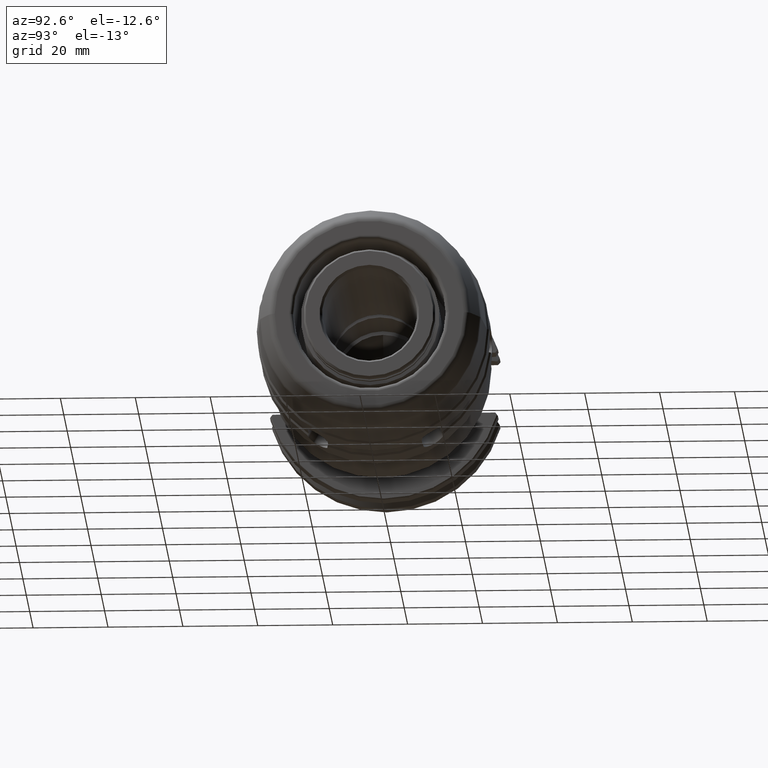
[diagram: clean part render]
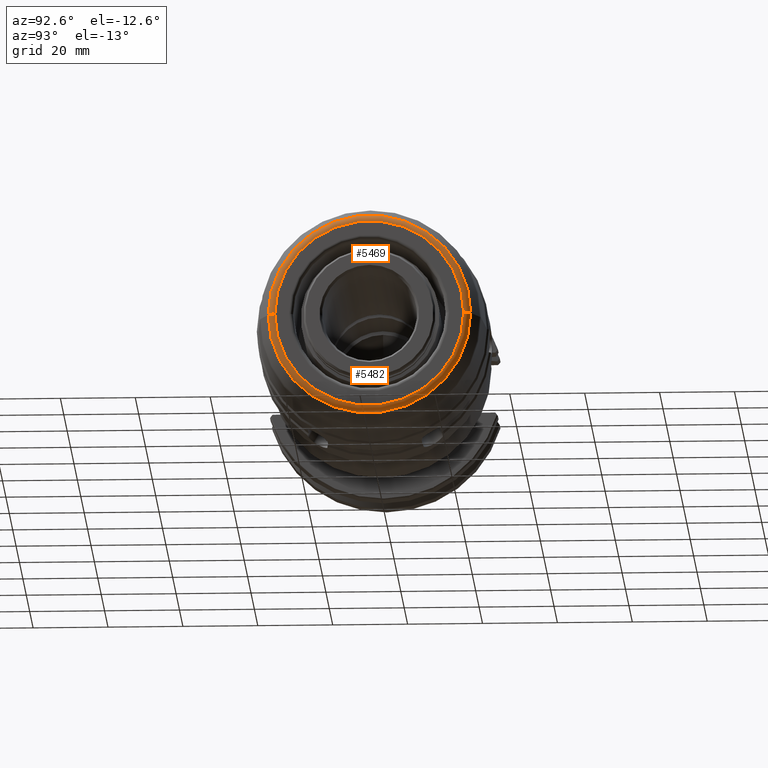
[diagram: same view with one multi-face feature highlighted, each face labeled with its STEP entity id]
A machine part, auxiliary view. The highlighted faces form ONE feature: a constant-radius fillet chain: 2 tangent blend faces with common blend radius 2 mm. The faces share edges in the B-rep.
Their STEP definitions:
[1] entity #5482 (Torus):
#3979=CARTESIAN_POINT('',(4.65E1,2.522585947839E1,0.E0));
#3980=DIRECTION('',(0.E0,0.E0,1.E0));
#3981=DIRECTION('',(1.E0,0.E0,0.E0));
#3982=AXIS2_PLACEMENT_3D('',#3979,#3980,#3981);
#3984=CARTESIAN_POINT('',(4.65E1,-2.522585947839E1,0.E0));
#3985=DIRECTION('',(0.E0,0.E0,-1.E0));
#3986=DIRECTION('',(1.E0,0.E0,0.E0));
#3987=AXIS2_PLACEMENT_3D('',#3984,#3985,#3986);
#3989=CARTESIAN_POINT('',(4.85E1,0.E0,0.E0));
#3990=DIRECTION('',(-1.E0,0.E0,0.E0));
#3991=DIRECTION('',(0.E0,1.E0,0.E0));
#3992=AXIS2_PLACEMENT_3D('',#3989,#3990,#3991);
#4002=CARTESIAN_POINT('',(4.734523652348E1,0.E0,0.E0));
#4003=DIRECTION('',(-1.E0,0.E0,0.E0));
#4004=DIRECTION('',(0.E0,1.E0,0.E0));
#4005=AXIS2_PLACEMENT_3D('',#4002,#4003,#4004);
#5036=CARTESIAN_POINT('',(4.85E1,2.522585947839E1,0.E0));
#5037=CARTESIAN_POINT('',(4.734523652348E1,2.703847505246E1,0.E0));
#5038=VERTEX_POINT('',#5036);
#5039=VERTEX_POINT('',#5037);
#5072=CARTESIAN_POINT('',(4.85E1,-2.522585947839E1,0.E0));
#5073=CARTESIAN_POINT('',(4.734523652348E1,-2.703847505246E1,0.E0));
#5074=VERTEX_POINT('',#5072);
#5075=VERTEX_POINT('',#5073);
#5470=CARTESIAN_POINT('',(4.65E1,0.E0,0.E0));
#5471=DIRECTION('',(1.E0,0.E0,0.E0));
#5472=DIRECTION('',(0.E0,-1.E0,0.E0));
#5473=AXIS2_PLACEMENT_3D('',#5470,#5471,#5472);
#5474=TOROIDAL_SURFACE('',#5473,2.522585947839E1,2.E0);
#5475=ORIENTED_EDGE('',*,*,#5460,.T.);
#5477=ORIENTED_EDGE('',*,*,#5476,.T.);
#5478=ORIENTED_EDGE('',*,*,#5463,.F.);
#5479=ORIENTED_EDGE('',*,*,#5446,.F.);
#5480=EDGE_LOOP('',(#5475,#5477,#5478,#5479));
#5481=FACE_OUTER_BOUND('',#5480,.F.);
#5482=ADVANCED_FACE('',(#5481),#5474,.T.);
#3983=CIRCLE('',#3982,2.E0);
#3988=CIRCLE('',#3987,2.E0);
#3993=CIRCLE('',#3992,2.522585947839E1);
#4006=CIRCLE('',#4005,2.703847505246E1);
#5446=EDGE_CURVE('',#5038,#5074,#3993,.T.);
#5460=EDGE_CURVE('',#5038,#5039,#3983,.T.);
#5463=EDGE_CURVE('',#5074,#5075,#3988,.T.);
#5476=EDGE_CURVE('',#5039,#5075,#4006,.T.);
[2] entity #5469 (Torus):
#3974=CARTESIAN_POINT('',(4.85E1,0.E0,0.E0));
#3975=DIRECTION('',(1.E0,0.E0,0.E0));
#3976=DIRECTION('',(0.E0,1.E0,0.E0));
#3977=AXIS2_PLACEMENT_3D('',#3974,#3975,#3976);
#3979=CARTESIAN_POINT('',(4.65E1,2.522585947839E1,0.E0));
#3980=DIRECTION('',(0.E0,0.E0,1.E0));
#3981=DIRECTION('',(1.E0,0.E0,0.E0));
#3982=AXIS2_PLACEMENT_3D('',#3979,#3980,#3981);
#3984=CARTESIAN_POINT('',(4.65E1,-2.522585947839E1,0.E0));
#3985=DIRECTION('',(0.E0,0.E0,-1.E0));
#3986=DIRECTION('',(1.E0,0.E0,0.E0));
#3987=AXIS2_PLACEMENT_3D('',#3984,#3985,#3986);
#4007=CARTESIAN_POINT('',(4.734523652348E1,0.E0,0.E0));
#4008=DIRECTION('',(1.E0,0.E0,0.E0));
#4009=DIRECTION('',(0.E0,1.E0,0.E0));
#4010=AXIS2_PLACEMENT_3D('',#4007,#4008,#4009);
#5036=CARTESIAN_POINT('',(4.85E1,2.522585947839E1,0.E0));
#5037=CARTESIAN_POINT('',(4.734523652348E1,2.703847505246E1,0.E0));
#5038=VERTEX_POINT('',#5036);
#5039=VERTEX_POINT('',#5037);
#5072=CARTESIAN_POINT('',(4.85E1,-2.522585947839E1,0.E0));
#5073=CARTESIAN_POINT('',(4.734523652348E1,-2.703847505246E1,0.E0));
#5074=VERTEX_POINT('',#5072);
#5075=VERTEX_POINT('',#5073);
#5455=CARTESIAN_POINT('',(4.65E1,0.E0,0.E0));
#5456=DIRECTION('',(1.E0,0.E0,0.E0));
#5457=DIRECTION('',(0.E0,-1.E0,0.E0));
#5458=AXIS2_PLACEMENT_3D('',#5455,#5456,#5457);
#5459=TOROIDAL_SURFACE('',#5458,2.522585947839E1,2.E0);
#5461=ORIENTED_EDGE('',*,*,#5460,.F.);
#5462=ORIENTED_EDGE('',*,*,#5444,.T.);
#5464=ORIENTED_EDGE('',*,*,#5463,.T.);
#5466=ORIENTED_EDGE('',*,*,#5465,.F.);
#5467=EDGE_LOOP('',(#5461,#5462,#5464,#5466));
#5468=FACE_OUTER_BOUND('',#5467,.F.);
#5469=ADVANCED_FACE('',(#5468),#5459,.T.);
#3978=CIRCLE('',#3977,2.522585947839E1);
#3983=CIRCLE('',#3982,2.E0);
#3988=CIRCLE('',#3987,2.E0);
#4011=CIRCLE('',#4010,2.703847505246E1);
#5444=EDGE_CURVE('',#5038,#5074,#3978,.T.);
#5460=EDGE_CURVE('',#5038,#5039,#3983,.T.);
#5463=EDGE_CURVE('',#5074,#5075,#3988,.T.);
#5465=EDGE_CURVE('',#5039,#5075,#4011,.T.);